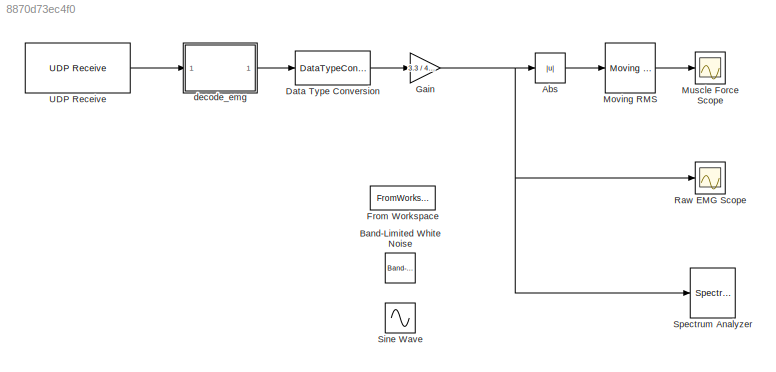
MODEL slx_8870d73ec4f0
KIND model
CONFIG AbsTol = auto
CONFIG EnableMultiTasking = off
CONFIG FixedStep = 0.001
CONFIG MaxStep = auto
CONFIG MinStep = auto
CONFIG RelTol = 1e-3
CONFIG SampleTimeConstraint = Unconstrained
CONFIG SolverName = FixedStepDiscrete
CONFIG StartTime = 0.0
CONFIG StopTime = inf
BLOCK [Abs] Abs
  SaturateOnIntegerOverflow = off
BLOCK [Reference] Band-Limited White Noise  REF=simulink/Sources/Band-Limited
White Noise
  SourceBlock = simulink/Sources/Band-Limited\nWhite Noise
  SourceType = Band-Limited White Noise.
BLOCK [DataTypeConversion] Data Type Conversion
  OutDataTypeStr = double
  RndMeth = Floor
  SaturateOnIntegerOverflow = off
BLOCK [FromWorkspace] From Workspace
  Interpolate = off
  OutputAfterFinalValue = Setting to zero
  SampleTime = 0.001
  VariableName = simin
BLOCK [Gain] Gain
  Gain = 3.3 / 4095
BLOCK [Reference] Moving RMS  REF=dspstat3/Moving
RMS
  SourceBlock = dspstat3/Moving\nRMS
  SourceType = dsp.simulink.MovingRMS
BLOCK [Scope] Muscle Force Scope
  Floating = off
  NumInputPorts = 1
  ScopeSpecificationString = Simulink.scopes.TimeScopeBlockCfg('CurrentConfiguration', extmgr.ConfigurationSet(extmgr.Configuration('Core','General UI',true),extmgr.Configuration('Core','Source UI',true),extmgr.Configuration('Sources','WiredSimulink',true,'DataLoggingVariableName','ScopeData1'),extmgr.Configuration('Visuals','Time Domain',true,'SerializedDisplays',{struct('MinYLimReal','-0.09962','MaxYLimReal','0.89824','YLab...<+1637ch>
BLOCK [Scope] Raw EMG Scope
  Floating = off
  NumInputPorts = 1
  ScopeSpecificationString = Simulink.scopes.TimeScopeBlockCfg('CurrentConfiguration', extmgr.ConfigurationSet(extmgr.Configuration('Core','General UI',true),extmgr.Configuration('Core','Source UI',true),extmgr.Configuration('Sources','WiredSimulink',true),extmgr.Configuration('Visuals','Time Domain',true,'SerializedDisplays',{struct('MinYLimReal','-0.17884','MaxYLimReal','1.60954','YLabelReal','','MinYLimMag','0.00000','MaxY...<+1683ch>
BLOCK [Sin] Sine Wave
  Frequency = 50
  SampleTime = 0.001
BLOCK [SpectrumAnalyzer] Spectrum Analyzer
  GraphicalSettings = {"GraphicalSettings":{"Style":{"BackgroundColor":[0.12941176470588237,0.12941176470588237,0.12941176470588237],"AxesColor":[0.07058823529411765,0.07058823529411765,0.07058823529411765],"LabelsColor":[0.8509803921568627,0.8509803921568627,0.8509803921568627],"PreserveColors":false,"Visible":[true],"LineStyle":["-"],"LineWidth":[1.5],"BarWidth":[0.9],"LineColor":[[1,0.9098039215686274,0.392156862745...<+999ch>
  ScopeFrameLocation = window
  WasSavedAsWebScope = on
  WindowInvariantSamplesPerUpdate = on
  WindowPosition = [633.000000,100.000000,800.000000,500.000000,]
  YLimits = [-27.409377191623378,24.414948617021263]
BLOCK [Reference] UDP Receive  REF=dspnetwork/UDP Receive
  LibrarySourceBlock = dspsrcs4/UDP Receive
  SourceBlock = dspnetwork/UDP Receive
  SourceType = UDP Receive
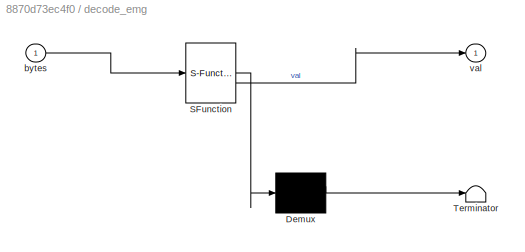
BLOCK [SubSystem] decode_emg
  ErrorFcn = Stateflow.Translate.translate
  PermitHierarchicalResolution = ExplicitOnly
  SFBlockType = MATLAB Function
  TreatAsAtomicUnit = on
BLOCK [Demux] decode_emg/ Demux 
  Outputs = 1
BLOCK [S-Function] decode_emg/ SFunction 
  EnableBusSupport = off
  FunctionName = sf_sfun
  PortCounts = [1 2]
  SFcnIsStateOwnerBlock = off
  SFunctionDeploymentMode = off
  Tag = Stateflow S-Function 2
BLOCK [Terminator] decode_emg/ Terminator 
BLOCK [Inport] decode_emg/bytes
BLOCK [Outport] decode_emg/val
LINE Abs:1 -> Moving RMS:1
LINE Data Type Conversion:1 -> Gain:1
NET Gain:1 -> Abs:1, Raw EMG Scope:1, Spectrum Analyzer:1
LINE Moving RMS:1 -> Muscle Force Scope:1
LINE UDP Receive:1 -> decode_emg:1
LINE decode_emg:1 -> Data Type Conversion:1
note: NET lines group one-source signal fan-out (src -> all destinations, sorted); 1:1 wires keep LINE
CHART decode_emg states=1 transitions=1
  STATE_LABEL 'eML_blk_kernel()'
  STATE_LABEL "SCRIPT:\nfunction val = decode_emg(bytes)\n    % Input 'bytes' is a vector of 2 numbers (uint8)\n    % We assume STM32 sends [LowByte, HighByte]\n    \n    % Combine them: Low + (High * 256)\n    %The STM32 sends a 16-bit integer split into two 8-bit pieces. This puts them back together.\n    val = double(bytes(1)) + (double(bytes(2)) * 256);\nend"
CHART  states=0 transitions=0
